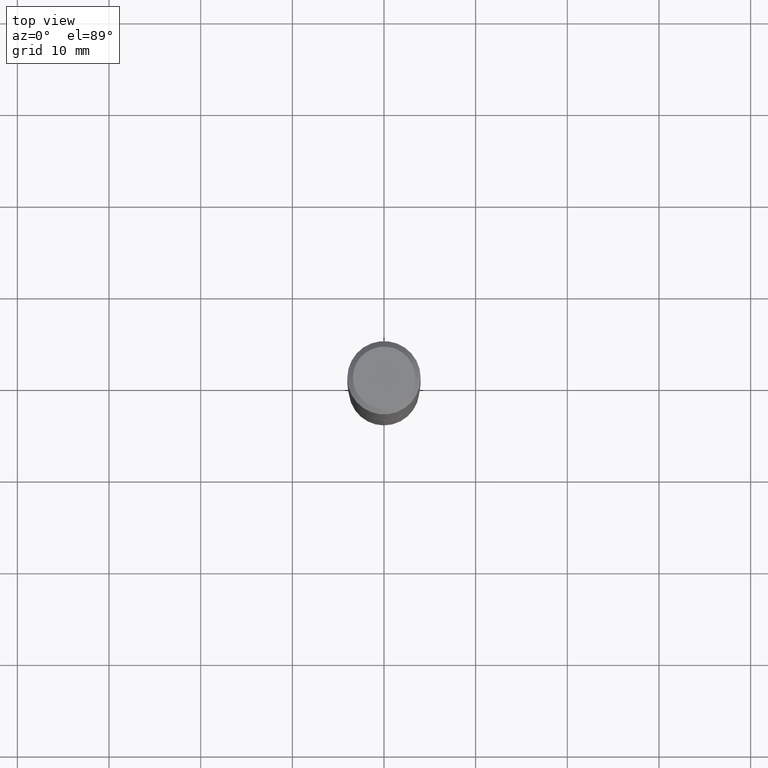
[diagram: clean part render]
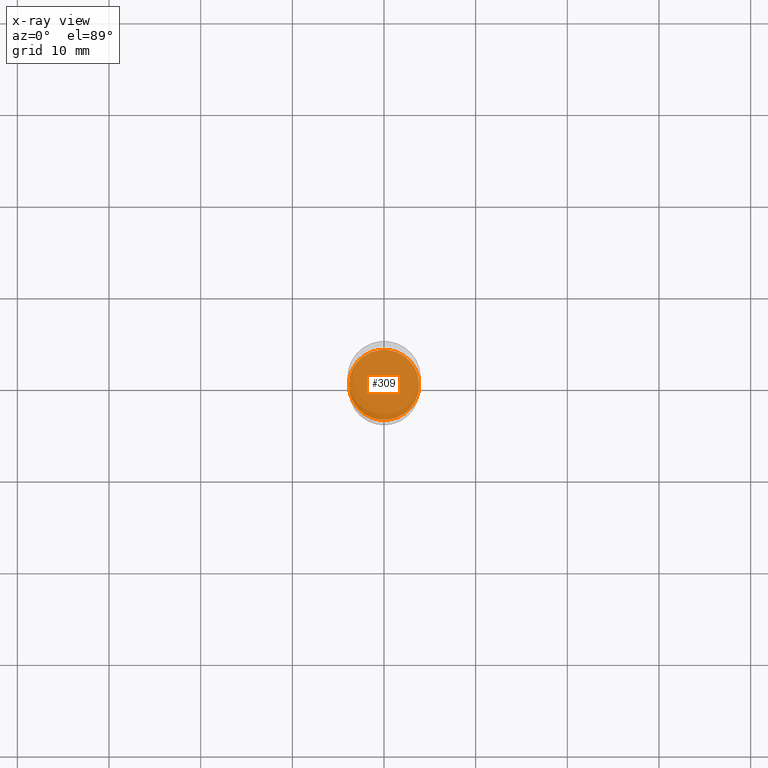
[diagram: x-ray — body ghosted, one internal face saturated and labeled with its STEP entity id]
A machine part, top view, then the same camera in x-ray: the body is ghosted and one INTERNAL B-rep face — a face not visible from any outside direction — is saturated and labeled: STEP entity #309.
In plain terms, the highlighted planar face has unit normal (-0, 0, 1).
Its self-contained STEP definition (entity closure, byte-faithful):
#39 = DIRECTION ( 'NONE',  ( 1.000000000000000000, -6.982962677686265922E-15, 4.876176775795935793E-29 ) ) ;
#65 = PLANE ( 'NONE',  #264 ) ;
#66 = CARTESIAN_POINT ( 'NONE',  ( 4.399642929207679953E-29, -6.281524076712703421E-15, -1.799100000000000144 ) ) ;
#94 = DIRECTION ( 'NONE',  ( 1.000000000000000000, -6.982962677686265133E-15, 0.000000000000000000 ) ) ;
#102 = FACE_OUTER_BOUND ( 'NONE', #422, .T. ) ;
#124 = CARTESIAN_POINT ( 'NONE',  ( 0.1510499999999999898, -7.336300589177213743E-15, -1.799100000000000144 ) ) ;
#139 = VERTEX_POINT ( 'NONE', #124 ) ;
#206 = CARTESIAN_POINT ( 'NONE',  ( 4.399642929207679953E-29, -6.281524076712703421E-15, -1.799100000000000144 ) ) ;
#210 = EDGE_CURVE ( 'NONE', #358, #139, #333, .T. ) ;
#211 = CARTESIAN_POINT ( 'NONE',  ( 2.127525226973809493E-29, -9.535325947220068579E-15, -1.799099999999999921 ) ) ;
#213 = DIRECTION ( 'NONE',  ( -2.438088387897960049E-29, 3.491481338843145188E-15, 1.000000000000000000 ) ) ;
#231 = EDGE_CURVE ( 'NONE', #139, #358, #250, .T. ) ;
#250 = CIRCLE ( 'NONE', #287, 0.1510499999999999898 ) ;
#264 = AXIS2_PLACEMENT_3D ( 'NONE', #211, #213, #39 ) ;
#281 = DIRECTION ( 'NONE',  ( -2.445468806185136597E-29, 3.491481338843145583E-15, 1.000000000000000000 ) ) ;
#287 = AXIS2_PLACEMENT_3D ( 'NONE', #206, #281, #94 ) ;
#291 = CARTESIAN_POINT ( 'NONE',  ( -0.1510499999999999898, -5.205600047172960764E-15, -1.799100000000000144 ) ) ;
#309 = ADVANCED_FACE ( 'NONE', ( #102 ), #65, .F. ) ;
#330 = ORIENTED_EDGE ( 'NONE', *, *, #231, .F. ) ;
#333 = CIRCLE ( 'NONE', #369, 0.1510499999999999898 ) ;
#351 = ORIENTED_EDGE ( 'NONE', *, *, #210, .F. ) ;
#358 = VERTEX_POINT ( 'NONE', #291 ) ;
#369 = AXIS2_PLACEMENT_3D ( 'NONE', #66, #396, #468 ) ;
#396 = DIRECTION ( 'NONE',  ( -2.445468806185136597E-29, 3.491481338843145583E-15, 1.000000000000000000 ) ) ;
#422 = EDGE_LOOP ( 'NONE', ( #330, #351 ) ) ;
#468 = DIRECTION ( 'NONE',  ( 1.000000000000000000, -6.982962677686265133E-15, 0.000000000000000000 ) ) ;